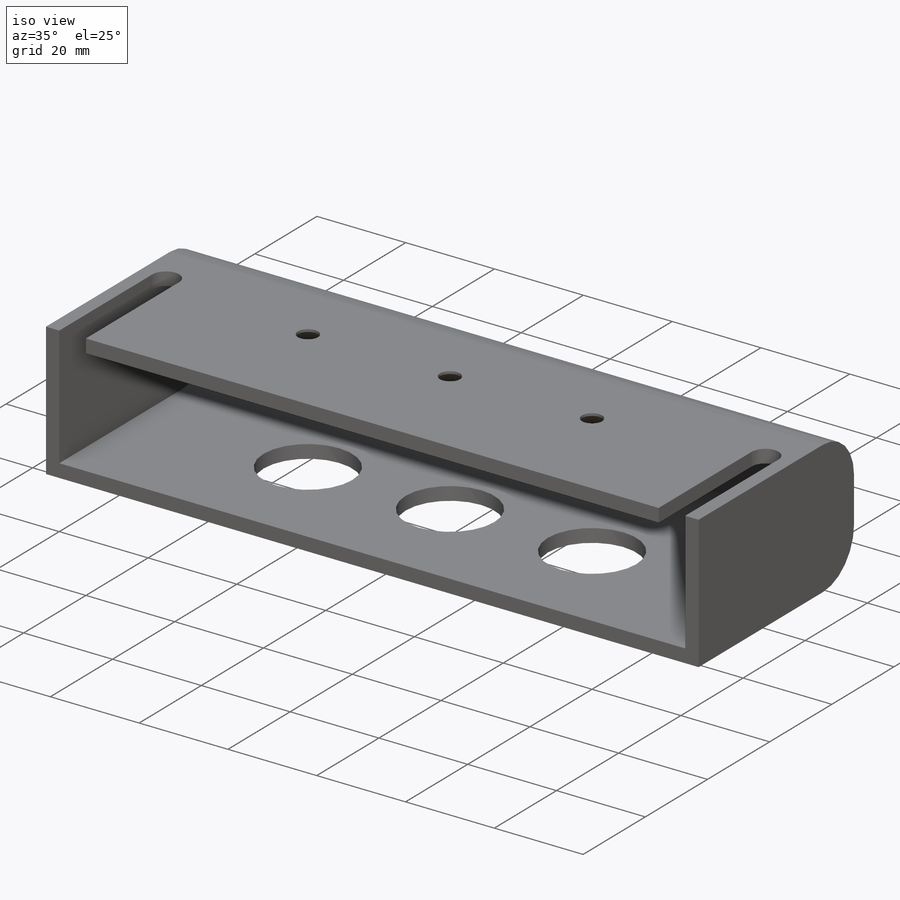
[diagram: iso view]
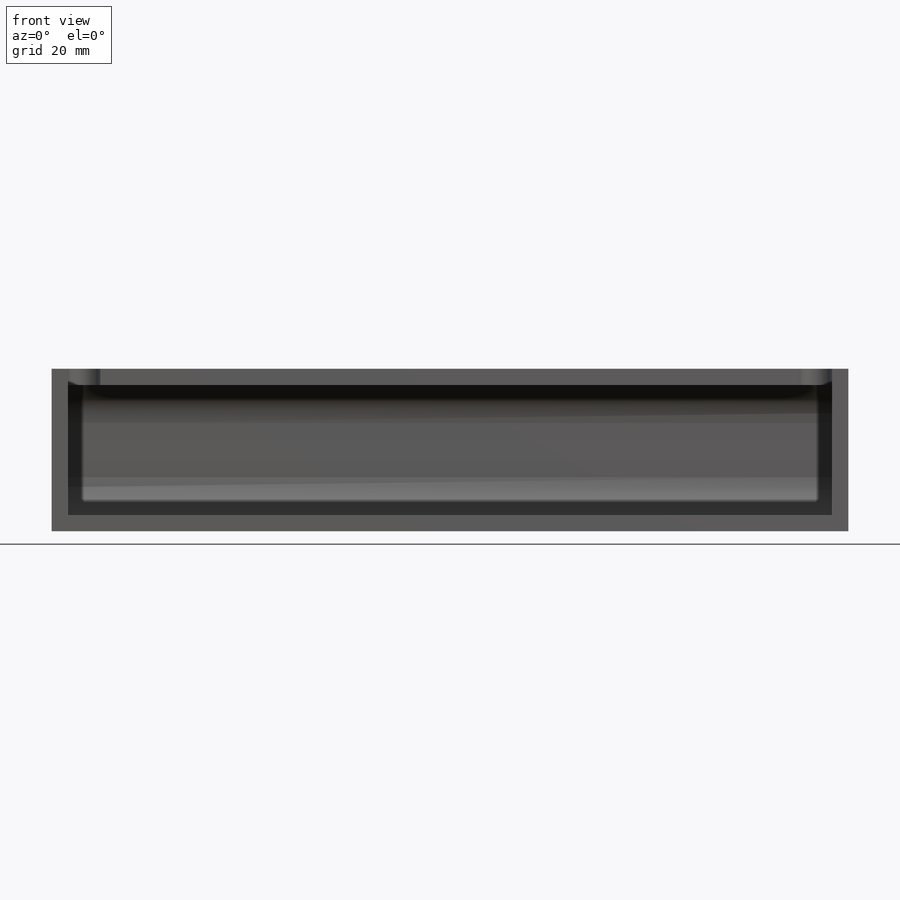
[diagram: front view]
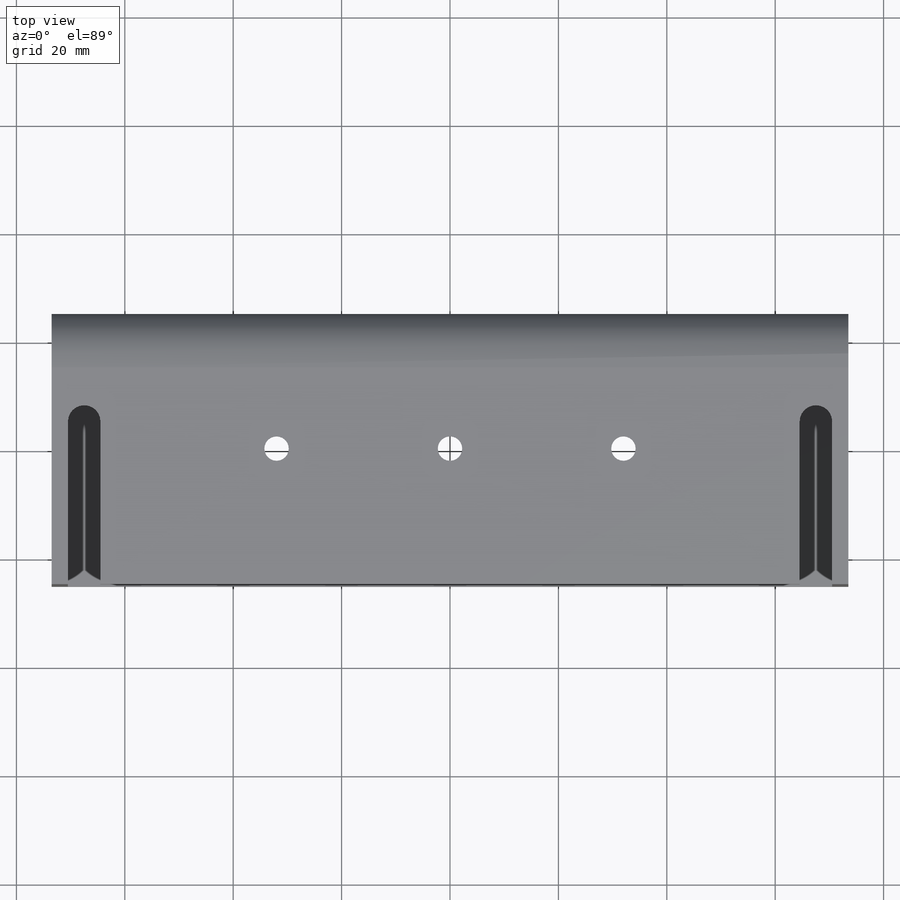
[diagram: top view]
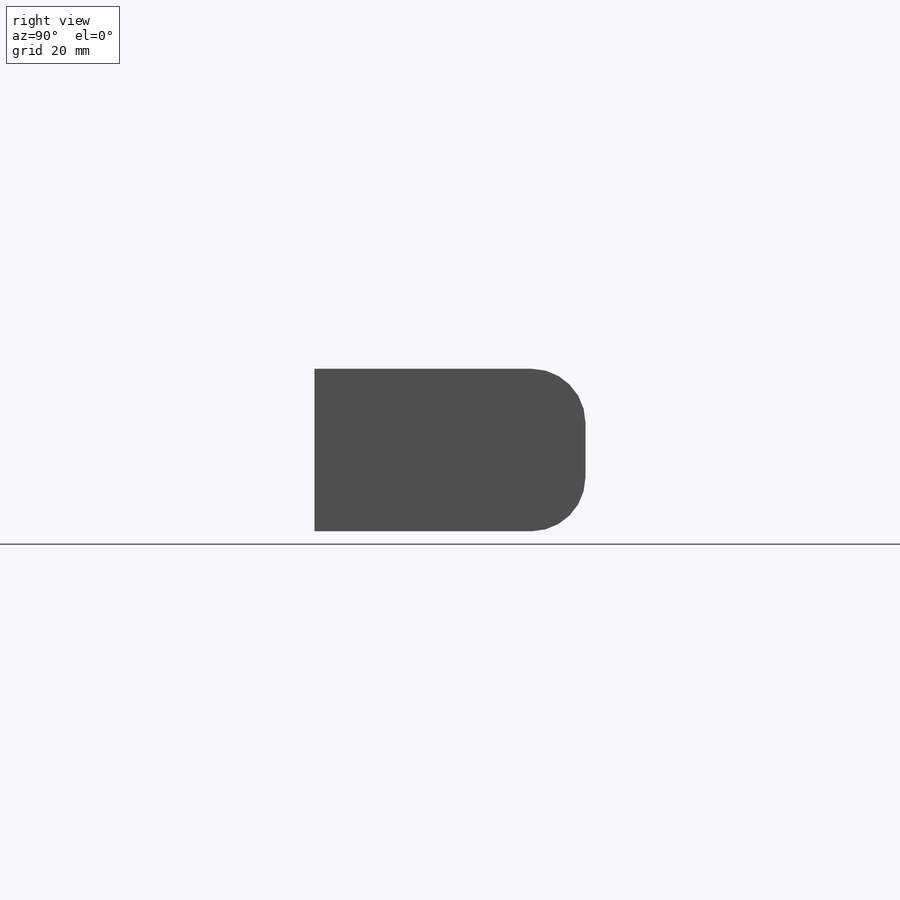
[diagram: right view]
SOLIDWORKS PART (.sldprt)
format: sldprt  version: not decoded by parser v0  size: 236,032 bytes
history: native  units: mm
features: sketch x5, cut_extrude x2, material x1, extrude x1, fillet x1, shell x1, mirror x1, hole x1 (+13 scaffold rows collapsed)
feature tree (26):
  scaffold x13  (default folders/planes/origin — collapsed)
  material  "Material <not specified>"
  sketch  "Sketch1"  dims[D1=147.0mm D2=50.0mm]
  extrude  "Boss-Extrude1"  Depth=30mm
  fillet  "Fillet1"  Radius=10mm
  shell  "Shell1"  Thickness=3mm
  sketch  "Sketch2"  dims[D1=30.0mm D2=6.0mm]
  cut_extrude  "Cut-Extrude1"  [1 undecoded]
  mirror  "Mirror1"
  hole  "CSK for M4 Countersunk Flat Head Screw1"  Diameter=4.5mm Depth=3mm
  sketch  "Sketch4"  dims[D1=64.0mm]
  sketch  "Sketch3"  dims[hole-wizard template sketch: 55 standard entries collapsed; hole parameters kept: c17.Thru Hole Depth=3.0mm c17.Near C'Sink Dia.=9.4mm c17.D4=~3.666174mm c17.Near C'Sink Angle=90.0deg]
  sketch  "Sketch5"  dims[D1=20.0mm]
  cut_extrude  "Cut-Extrude2"  [1 undecoded]
decode coverage: 9 of 12 modeling features carry decoded parameters
note: ~ marks probable driven/reference dimensions
note: 2 parameter values undecoded
note: suppression state not decoded; provenance and decode notes live in map.json
